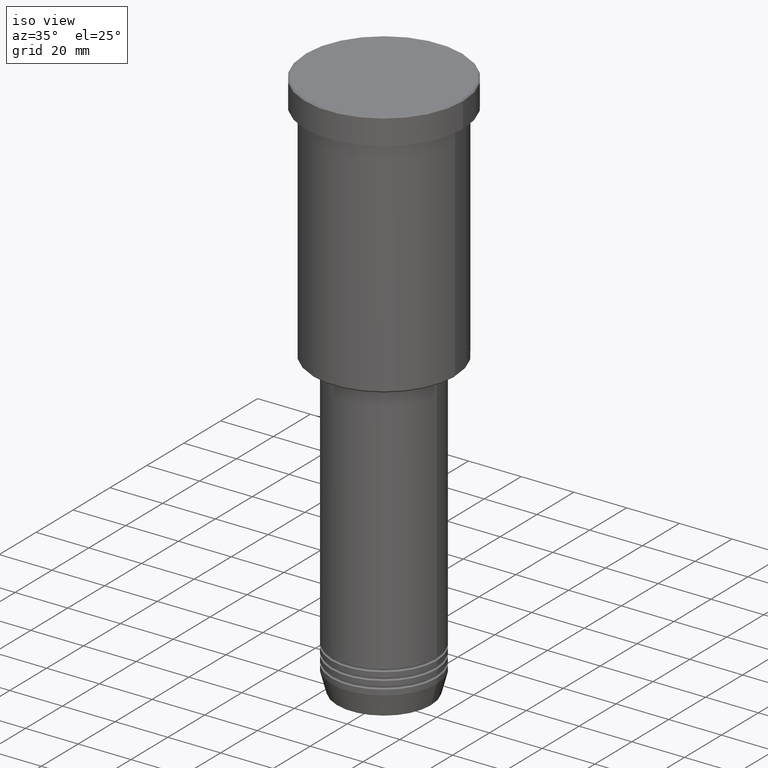
[diagram: clean part render]
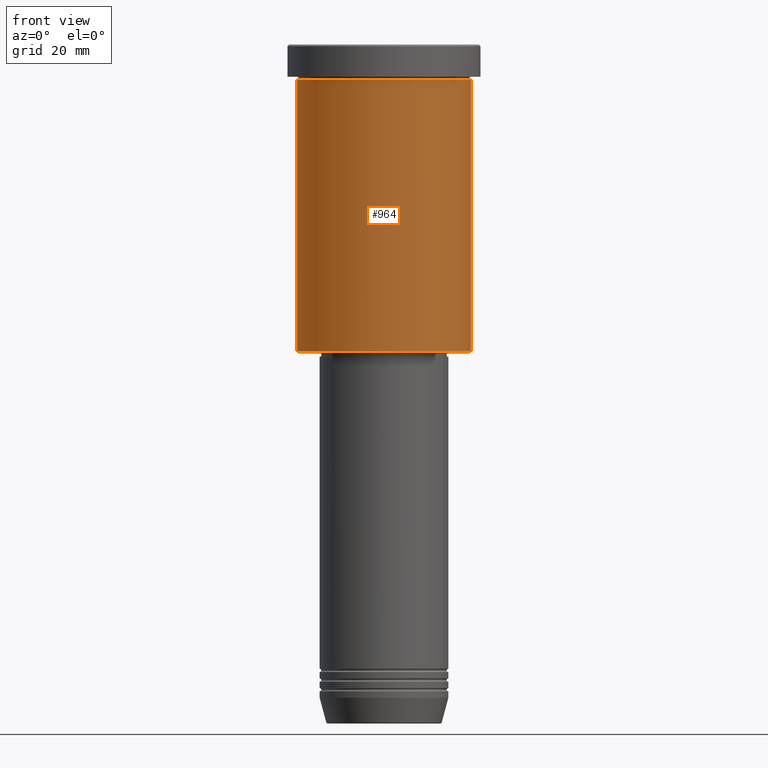
[diagram: tour spotlight — one face highlighted and labeled with its STEP entity id]
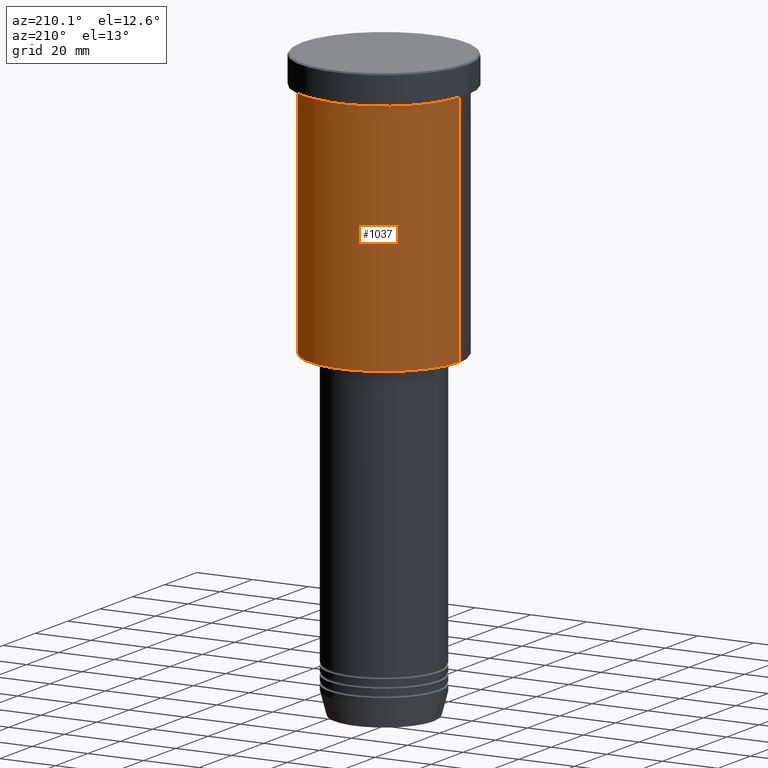
[diagram: tour spotlight — one face highlighted and labeled with its STEP entity id]
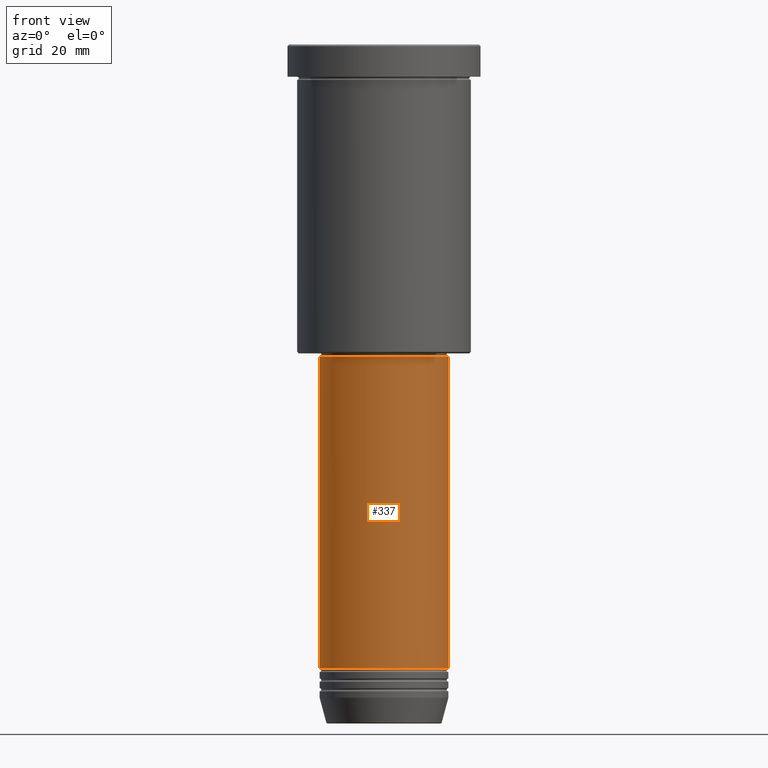
[diagram: tour spotlight — one face highlighted and labeled with its STEP entity id]
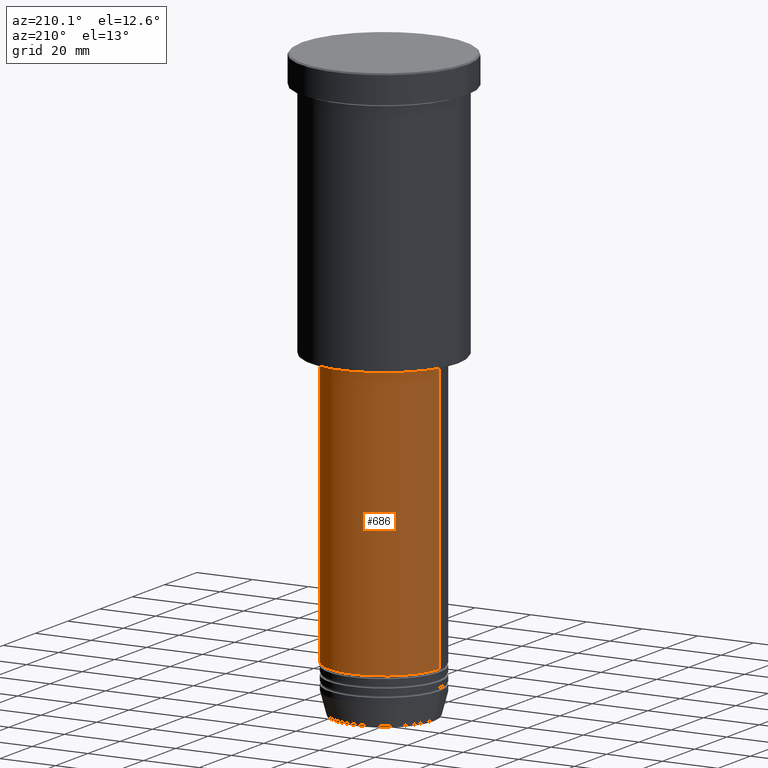
[diagram: tour spotlight — one face highlighted and labeled with its STEP entity id]
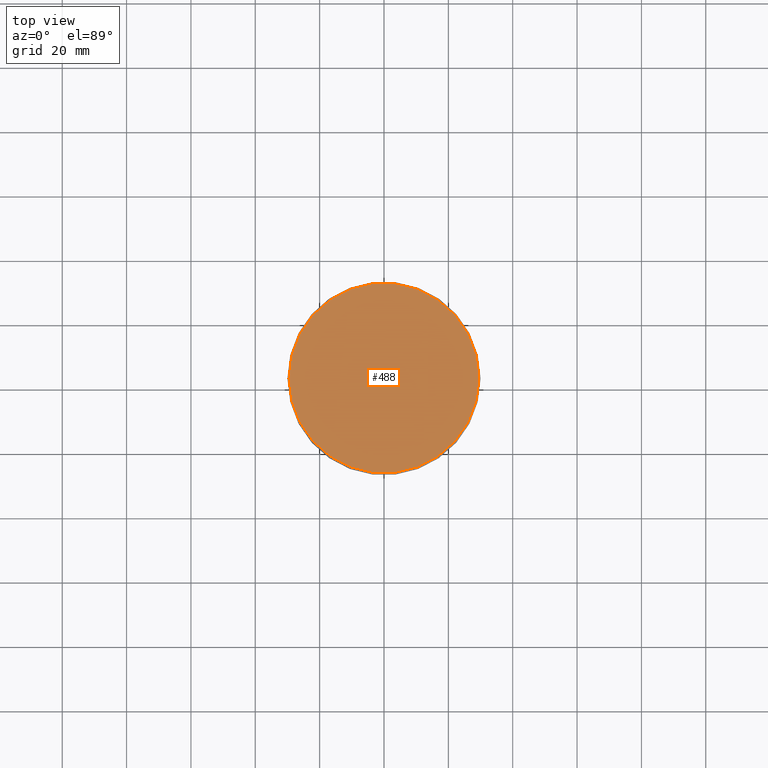
[diagram: tour spotlight — one face highlighted and labeled with its STEP entity id]
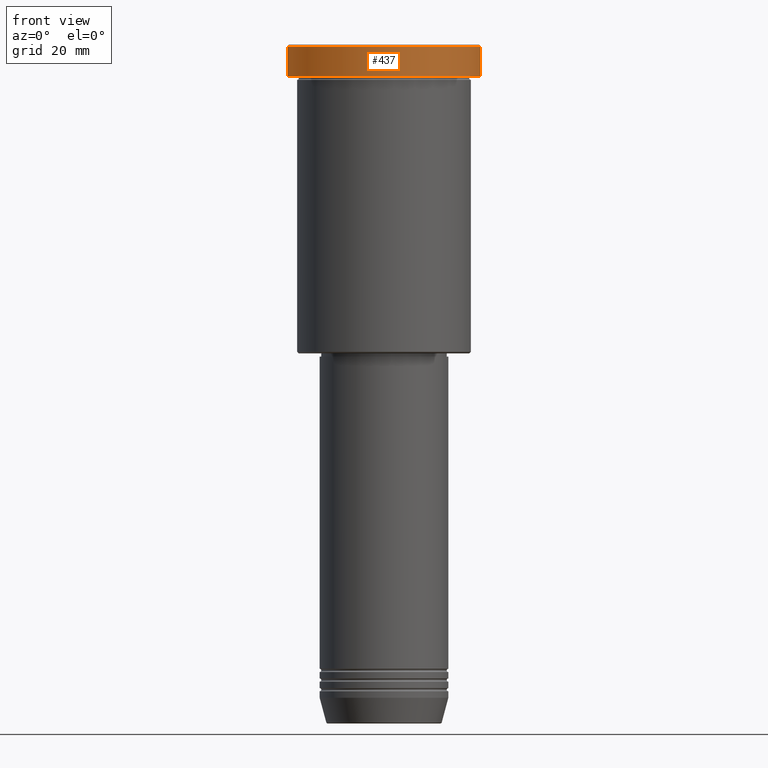
[diagram: tour spotlight — one face highlighted and labeled with its STEP entity id]
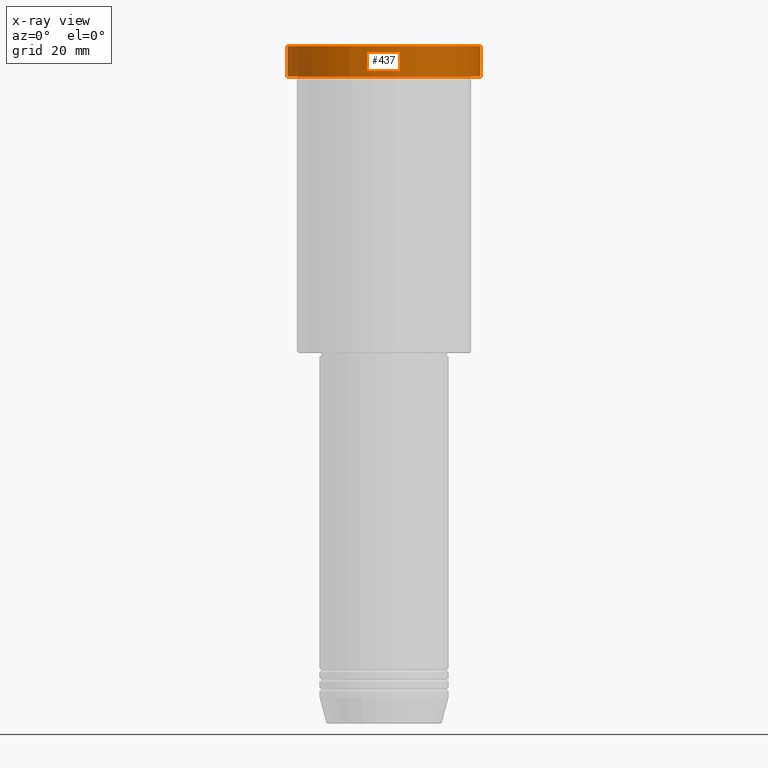
[diagram: x-ray of the same camera — body ghosted, this tour face saturated]
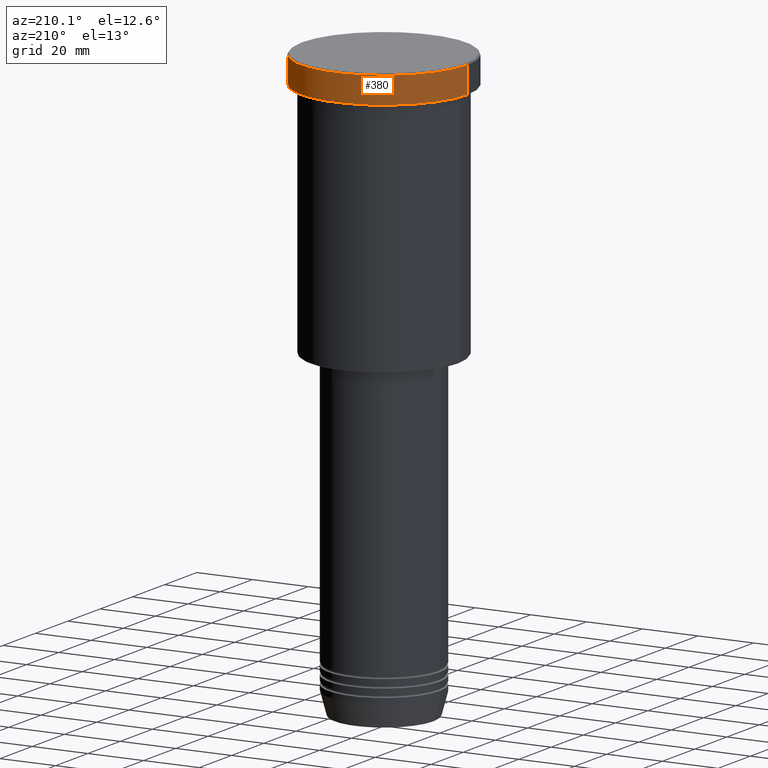
[diagram: tour spotlight — one face highlighted and labeled with its STEP entity id]
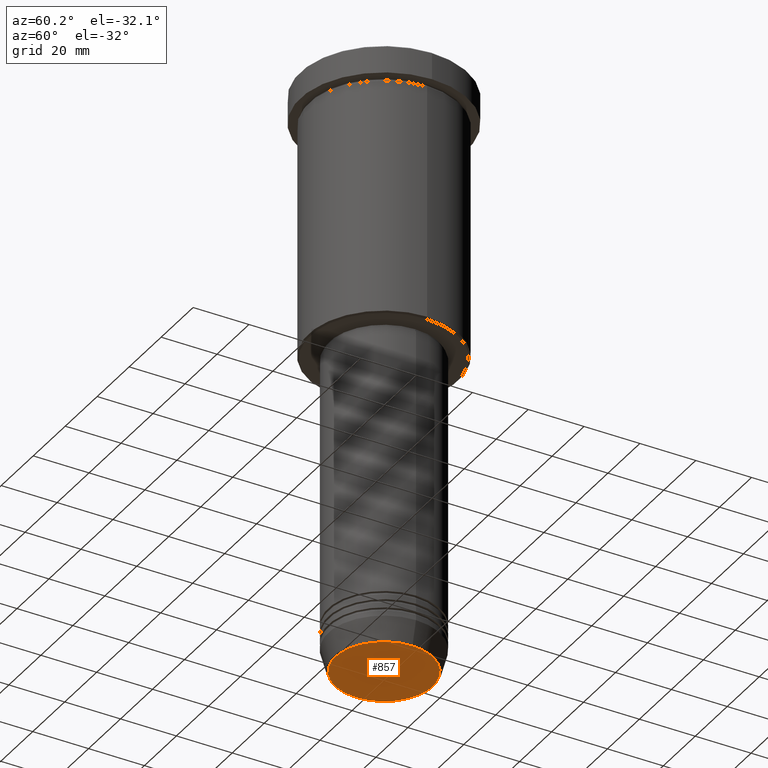
[diagram: tour spotlight — one face highlighted and labeled with its STEP entity id]
A machine part: a face-by-face anatomy tour. The part has 43 B-rep faces; the first image is the clean iso view, then the 8 largest visible faces are spotlighted one at a time (largest first), each with its STEP entity span.

Face 1 — front view, entity #964. In plain terms, the highlighted cylindrical surface (partial cylindrical patch) has radius 27 mm, axis along (-0, -0, 1).
Definition (entity closure, byte-faithful):
#94 = DIRECTION ( 'NONE',  ( -1.000000000000000000, 0.000000000000000000, 0.000000000000000000 ) ) ;
#130 = CARTESIAN_POINT ( 'NONE',  ( 27.00000000000000355, 0.000000000000000000, -10.99999999999999289 ) ) ;
#140 = AXIS2_PLACEMENT_3D ( 'NONE', #374, #643, #743 ) ;
#167 = DIRECTION ( 'NONE',  ( -0.000000000000000000, -0.000000000000000000, 1.000000000000000000 ) ) ;
#177 = ORIENTED_EDGE ( 'NONE', *, *, #750, .F. ) ;
#275 = EDGE_LOOP ( 'NONE', ( #339, #590, #574, #177 ) ) ;
#289 = EDGE_CURVE ( 'NONE', #565, #742, #1074, .T. ) ;
#312 = AXIS2_PLACEMENT_3D ( 'NONE', #621, #167, #94 ) ;
#339 = ORIENTED_EDGE ( 'NONE', *, *, #1002, .F. ) ;
#369 = CARTESIAN_POINT ( 'NONE',  ( 27.00000000000000355, 0.000000000000000000, 0.000000000000000000 ) ) ;
#374 = CARTESIAN_POINT ( 'NONE',  ( 0.000000000000000000, 0.000000000000000000, 0.000000000000000000 ) ) ;
#444 = VECTOR ( 'NONE', #1048, 1000.000000000000000 ) ;
#508 = AXIS2_PLACEMENT_3D ( 'NONE', #889, #1164, #624 ) ;
#565 = VERTEX_POINT ( 'NONE', #610 ) ;
#574 = ORIENTED_EDGE ( 'NONE', *, *, #846, .T. ) ;
#590 = ORIENTED_EDGE ( 'NONE', *, *, #289, .T. ) ;
#610 = CARTESIAN_POINT ( 'NONE',  ( -27.00000000000000355, 3.306546357697854128E-15, -95.49999999999990052 ) ) ;
#621 = CARTESIAN_POINT ( 'NONE',  ( 0.000000000000000000, 0.000000000000000000, -95.49999999999990052 ) ) ;
#624 = DIRECTION ( 'NONE',  ( 1.000000000000000000, 0.000000000000000000, 0.000000000000000000 ) ) ;
#643 = DIRECTION ( 'NONE',  ( -0.000000000000000000, -0.000000000000000000, 1.000000000000000000 ) ) ;
#663 = FACE_OUTER_BOUND ( 'NONE', #275, .T. ) ;
#667 = LINE ( 'NONE', #878, #444 ) ;
#697 = VECTOR ( 'NONE', #1015, 1000.000000000000000 ) ;
#720 = CARTESIAN_POINT ( 'NONE',  ( 27.00000000000000355, 0.000000000000000000, -95.49999999999990052 ) ) ;
#742 = VERTEX_POINT ( 'NONE', #720 ) ;
#743 = DIRECTION ( 'NONE',  ( 1.000000000000000000, 0.000000000000000000, 0.000000000000000000 ) ) ;
#750 = EDGE_CURVE ( 'NONE', #1000, #1087, #1018, .T. ) ;
#846 = EDGE_CURVE ( 'NONE', #742, #1087, #1006, .T. ) ;
#878 = CARTESIAN_POINT ( 'NONE',  ( -27.00000000000000355, 3.306546357697854128E-15, 0.000000000000000000 ) ) ;
#889 = CARTESIAN_POINT ( 'NONE',  ( 0.000000000000000000, 0.000000000000000000, -10.99999999999999289 ) ) ;
#964 = ADVANCED_FACE ( 'NONE', ( #663 ), #1103, .T. ) ;
#1000 = VERTEX_POINT ( 'NONE', #1124 ) ;
#1002 = EDGE_CURVE ( 'NONE', #565, #1000, #667, .T. ) ;
#1006 = LINE ( 'NONE', #369, #697 ) ;
#1015 = DIRECTION ( 'NONE',  ( -0.000000000000000000, -0.000000000000000000, 1.000000000000000000 ) ) ;
#1018 = CIRCLE ( 'NONE', #508, 27.00000000000000355 ) ;
#1048 = DIRECTION ( 'NONE',  ( -0.000000000000000000, -0.000000000000000000, 1.000000000000000000 ) ) ;
#1074 = CIRCLE ( 'NONE', #312, 27.00000000000000355 ) ;
#1087 = VERTEX_POINT ( 'NONE', #130 ) ;
#1103 = CYLINDRICAL_SURFACE ( 'NONE', #140, 27.00000000000000355 ) ;
#1124 = CARTESIAN_POINT ( 'NONE',  ( -27.00000000000000355, 3.306546357697854128E-15, -10.99999999999999289 ) ) ;
#1164 = DIRECTION ( 'NONE',  ( -0.000000000000000000, -0.000000000000000000, 1.000000000000000000 ) ) ;

Face 2 — auxiliary view, entity #1037. In plain terms, the highlighted cylindrical surface (partial cylindrical patch) has radius 27 mm, axis along (-0, -0, 1).
Definition (entity closure, byte-faithful):
#3 = ORIENTED_EDGE ( 'NONE', *, *, #846, .F. ) ;
#82 = CARTESIAN_POINT ( 'NONE',  ( 0.000000000000000000, 0.000000000000000000, -95.49999999999990052 ) ) ;
#89 = CIRCLE ( 'NONE', #999, 27.00000000000000355 ) ;
#130 = CARTESIAN_POINT ( 'NONE',  ( 27.00000000000000355, 0.000000000000000000, -10.99999999999999289 ) ) ;
#188 = EDGE_LOOP ( 'NONE', ( #618, #627, #548, #3 ) ) ;
#316 = CARTESIAN_POINT ( 'NONE',  ( 0.000000000000000000, 0.000000000000000000, -10.99999999999999289 ) ) ;
#369 = CARTESIAN_POINT ( 'NONE',  ( 27.00000000000000355, 0.000000000000000000, 0.000000000000000000 ) ) ;
#401 = DIRECTION ( 'NONE',  ( 1.000000000000000000, 0.000000000000000000, 0.000000000000000000 ) ) ;
#444 = VECTOR ( 'NONE', #1048, 1000.000000000000000 ) ;
#492 = DIRECTION ( 'NONE',  ( 1.000000000000000000, 0.000000000000000000, 0.000000000000000000 ) ) ;
#534 = DIRECTION ( 'NONE',  ( -0.000000000000000000, -0.000000000000000000, 1.000000000000000000 ) ) ;
#542 = EDGE_CURVE ( 'NONE', #1087, #1000, #89, .T. ) ;
#548 = ORIENTED_EDGE ( 'NONE', *, *, #542, .F. ) ;
#565 = VERTEX_POINT ( 'NONE', #610 ) ;
#575 = DIRECTION ( 'NONE',  ( -0.000000000000000000, -0.000000000000000000, 1.000000000000000000 ) ) ;
#598 = DIRECTION ( 'NONE',  ( -0.000000000000000000, -0.000000000000000000, 1.000000000000000000 ) ) ;
#610 = CARTESIAN_POINT ( 'NONE',  ( -27.00000000000000355, 3.306546357697854128E-15, -95.49999999999990052 ) ) ;
#618 = ORIENTED_EDGE ( 'NONE', *, *, #680, .T. ) ;
#627 = ORIENTED_EDGE ( 'NONE', *, *, #1002, .T. ) ;
#667 = LINE ( 'NONE', #878, #444 ) ;
#680 = EDGE_CURVE ( 'NONE', #742, #565, #1155, .T. ) ;
#695 = AXIS2_PLACEMENT_3D ( 'NONE', #82, #534, #1157 ) ;
#697 = VECTOR ( 'NONE', #1015, 1000.000000000000000 ) ;
#720 = CARTESIAN_POINT ( 'NONE',  ( 27.00000000000000355, 0.000000000000000000, -95.49999999999990052 ) ) ;
#742 = VERTEX_POINT ( 'NONE', #720 ) ;
#778 = CARTESIAN_POINT ( 'NONE',  ( 0.000000000000000000, 0.000000000000000000, 0.000000000000000000 ) ) ;
#846 = EDGE_CURVE ( 'NONE', #742, #1087, #1006, .T. ) ;
#878 = CARTESIAN_POINT ( 'NONE',  ( -27.00000000000000355, 3.306546357697854128E-15, 0.000000000000000000 ) ) ;
#999 = AXIS2_PLACEMENT_3D ( 'NONE', #316, #598, #401 ) ;
#1000 = VERTEX_POINT ( 'NONE', #1124 ) ;
#1002 = EDGE_CURVE ( 'NONE', #565, #1000, #667, .T. ) ;
#1006 = LINE ( 'NONE', #369, #697 ) ;
#1015 = DIRECTION ( 'NONE',  ( -0.000000000000000000, -0.000000000000000000, 1.000000000000000000 ) ) ;
#1035 = FACE_OUTER_BOUND ( 'NONE', #188, .T. ) ;
#1037 = ADVANCED_FACE ( 'NONE', ( #1035 ), #1130, .T. ) ;
#1048 = DIRECTION ( 'NONE',  ( -0.000000000000000000, -0.000000000000000000, 1.000000000000000000 ) ) ;
#1087 = VERTEX_POINT ( 'NONE', #130 ) ;
#1124 = CARTESIAN_POINT ( 'NONE',  ( -27.00000000000000355, 3.306546357697854128E-15, -10.99999999999999289 ) ) ;
#1130 = CYLINDRICAL_SURFACE ( 'NONE', #1169, 27.00000000000000355 ) ;
#1155 = CIRCLE ( 'NONE', #695, 27.00000000000000355 ) ;
#1157 = DIRECTION ( 'NONE',  ( -1.000000000000000000, 0.000000000000000000, 0.000000000000000000 ) ) ;
#1169 = AXIS2_PLACEMENT_3D ( 'NONE', #778, #575, #492 ) ;

Face 3 — front view, entity #337. In plain terms, the highlighted cylindrical surface (partial cylindrical patch) has radius 20 mm, axis along (-0, -0, 1).
Definition (entity closure, byte-faithful):
#4 = ORIENTED_EDGE ( 'NONE', *, *, #414, .T. ) ;
#92 = VERTEX_POINT ( 'NONE', #241 ) ;
#114 = CYLINDRICAL_SURFACE ( 'NONE', #465, 20.00000000000000000 ) ;
#116 = EDGE_CURVE ( 'NONE', #281, #651, #656, .T. ) ;
#144 = DIRECTION ( 'NONE',  ( -0.000000000000000000, -0.000000000000000000, 1.000000000000000000 ) ) ;
#153 = ORIENTED_EDGE ( 'NONE', *, *, #116, .F. ) ;
#196 = DIRECTION ( 'NONE',  ( -0.000000000000000000, -0.000000000000000000, 1.000000000000000000 ) ) ;
#241 = CARTESIAN_POINT ( 'NONE',  ( -20.00000000000000000, 2.449293598294706513E-15, -193.9999999999999716 ) ) ;
#281 = VERTEX_POINT ( 'NONE', #341 ) ;
#314 = LINE ( 'NONE', #591, #868 ) ;
#317 = DIRECTION ( 'NONE',  ( -0.000000000000000000, -0.000000000000000000, 1.000000000000000000 ) ) ;
#337 = ADVANCED_FACE ( 'NONE', ( #847 ), #114, .T. ) ;
#341 = CARTESIAN_POINT ( 'NONE',  ( -20.00000000000000000, 2.449293598294706513E-15, -97.00000000000000000 ) ) ;
#368 = ORIENTED_EDGE ( 'NONE', *, *, #1020, .T. ) ;
#376 = CARTESIAN_POINT ( 'NONE',  ( 20.00000000000000000, 0.000000000000000000, 0.000000000000000000 ) ) ;
#381 = CARTESIAN_POINT ( 'NONE',  ( 0.000000000000000000, 0.000000000000000000, 0.000000000000000000 ) ) ;
#414 = EDGE_CURVE ( 'NONE', #729, #651, #668, .T. ) ;
#465 = AXIS2_PLACEMENT_3D ( 'NONE', #381, #196, #1114 ) ;
#486 = CARTESIAN_POINT ( 'NONE',  ( 0.000000000000000000, 0.000000000000000000, -193.9999999999999716 ) ) ;
#501 = CIRCLE ( 'NONE', #919, 20.00000000000000000 ) ;
#591 = CARTESIAN_POINT ( 'NONE',  ( -20.00000000000000000, 2.449293598294706513E-15, 0.000000000000000000 ) ) ;
#622 = ORIENTED_EDGE ( 'NONE', *, *, #1067, .F. ) ;
#649 = DIRECTION ( 'NONE',  ( -0.000000000000000000, -0.000000000000000000, 1.000000000000000000 ) ) ;
#651 = VERTEX_POINT ( 'NONE', #907 ) ;
#656 = CIRCLE ( 'NONE', #996, 20.00000000000000000 ) ;
#668 = LINE ( 'NONE', #376, #1174 ) ;
#729 = VERTEX_POINT ( 'NONE', #1082 ) ;
#782 = DIRECTION ( 'NONE',  ( 1.000000000000000000, 0.000000000000000000, 0.000000000000000000 ) ) ;
#847 = FACE_OUTER_BOUND ( 'NONE', #984, .T. ) ;
#868 = VECTOR ( 'NONE', #938, 1000.000000000000000 ) ;
#907 = CARTESIAN_POINT ( 'NONE',  ( 20.00000000000000000, 0.000000000000000000, -97.00000000000000000 ) ) ;
#919 = AXIS2_PLACEMENT_3D ( 'NONE', #486, #144, #782 ) ;
#938 = DIRECTION ( 'NONE',  ( -0.000000000000000000, -0.000000000000000000, 1.000000000000000000 ) ) ;
#984 = EDGE_LOOP ( 'NONE', ( #622, #368, #4, #153 ) ) ;
#996 = AXIS2_PLACEMENT_3D ( 'NONE', #1133, #317, #1154 ) ;
#1020 = EDGE_CURVE ( 'NONE', #92, #729, #501, .T. ) ;
#1067 = EDGE_CURVE ( 'NONE', #92, #281, #314, .T. ) ;
#1082 = CARTESIAN_POINT ( 'NONE',  ( 20.00000000000000000, 0.000000000000000000, -193.9999999999999716 ) ) ;
#1114 = DIRECTION ( 'NONE',  ( 1.000000000000000000, 0.000000000000000000, 0.000000000000000000 ) ) ;
#1133 = CARTESIAN_POINT ( 'NONE',  ( 0.000000000000000000, 0.000000000000000000, -97.00000000000000000 ) ) ;
#1154 = DIRECTION ( 'NONE',  ( 1.000000000000000000, 0.000000000000000000, 0.000000000000000000 ) ) ;
#1174 = VECTOR ( 'NONE', #649, 1000.000000000000000 ) ;

Face 4 — auxiliary view, entity #686. In plain terms, the highlighted cylindrical surface (partial cylindrical patch) has radius 20 mm, axis along (-0, -0, 1).
Definition (entity closure, byte-faithful):
#86 = CIRCLE ( 'NONE', #811, 20.00000000000000000 ) ;
#92 = VERTEX_POINT ( 'NONE', #241 ) ;
#93 = FACE_OUTER_BOUND ( 'NONE', #1102, .T. ) ;
#160 = CIRCLE ( 'NONE', #483, 20.00000000000000000 ) ;
#176 = EDGE_CURVE ( 'NONE', #651, #281, #86, .T. ) ;
#203 = DIRECTION ( 'NONE',  ( -0.000000000000000000, -0.000000000000000000, 1.000000000000000000 ) ) ;
#235 = CARTESIAN_POINT ( 'NONE',  ( 0.000000000000000000, 0.000000000000000000, -97.00000000000000000 ) ) ;
#241 = CARTESIAN_POINT ( 'NONE',  ( -20.00000000000000000, 2.449293598294706513E-15, -193.9999999999999716 ) ) ;
#281 = VERTEX_POINT ( 'NONE', #341 ) ;
#314 = LINE ( 'NONE', #591, #868 ) ;
#341 = CARTESIAN_POINT ( 'NONE',  ( -20.00000000000000000, 2.449293598294706513E-15, -97.00000000000000000 ) ) ;
#359 = EDGE_CURVE ( 'NONE', #729, #92, #160, .T. ) ;
#376 = CARTESIAN_POINT ( 'NONE',  ( 20.00000000000000000, 0.000000000000000000, 0.000000000000000000 ) ) ;
#414 = EDGE_CURVE ( 'NONE', #729, #651, #668, .T. ) ;
#452 = CARTESIAN_POINT ( 'NONE',  ( 0.000000000000000000, 0.000000000000000000, 0.000000000000000000 ) ) ;
#457 = ORIENTED_EDGE ( 'NONE', *, *, #414, .F. ) ;
#461 = ORIENTED_EDGE ( 'NONE', *, *, #1067, .T. ) ;
#483 = AXIS2_PLACEMENT_3D ( 'NONE', #836, #203, #1100 ) ;
#522 = CYLINDRICAL_SURFACE ( 'NONE', #620, 20.00000000000000000 ) ;
#591 = CARTESIAN_POINT ( 'NONE',  ( -20.00000000000000000, 2.449293598294706513E-15, 0.000000000000000000 ) ) ;
#600 = DIRECTION ( 'NONE',  ( -0.000000000000000000, -0.000000000000000000, 1.000000000000000000 ) ) ;
#620 = AXIS2_PLACEMENT_3D ( 'NONE', #452, #974, #812 ) ;
#649 = DIRECTION ( 'NONE',  ( -0.000000000000000000, -0.000000000000000000, 1.000000000000000000 ) ) ;
#651 = VERTEX_POINT ( 'NONE', #907 ) ;
#668 = LINE ( 'NONE', #376, #1174 ) ;
#686 = ADVANCED_FACE ( 'NONE', ( #93 ), #522, .T. ) ;
#729 = VERTEX_POINT ( 'NONE', #1082 ) ;
#811 = AXIS2_PLACEMENT_3D ( 'NONE', #235, #600, #1083 ) ;
#812 = DIRECTION ( 'NONE',  ( 1.000000000000000000, 0.000000000000000000, 0.000000000000000000 ) ) ;
#836 = CARTESIAN_POINT ( 'NONE',  ( 0.000000000000000000, 0.000000000000000000, -193.9999999999999716 ) ) ;
#868 = VECTOR ( 'NONE', #938, 1000.000000000000000 ) ;
#907 = CARTESIAN_POINT ( 'NONE',  ( 20.00000000000000000, 0.000000000000000000, -97.00000000000000000 ) ) ;
#938 = DIRECTION ( 'NONE',  ( -0.000000000000000000, -0.000000000000000000, 1.000000000000000000 ) ) ;
#974 = DIRECTION ( 'NONE',  ( -0.000000000000000000, -0.000000000000000000, 1.000000000000000000 ) ) ;
#1004 = ORIENTED_EDGE ( 'NONE', *, *, #176, .F. ) ;
#1067 = EDGE_CURVE ( 'NONE', #92, #281, #314, .T. ) ;
#1082 = CARTESIAN_POINT ( 'NONE',  ( 20.00000000000000000, 0.000000000000000000, -193.9999999999999716 ) ) ;
#1083 = DIRECTION ( 'NONE',  ( 1.000000000000000000, 0.000000000000000000, 0.000000000000000000 ) ) ;
#1100 = DIRECTION ( 'NONE',  ( 1.000000000000000000, 0.000000000000000000, 0.000000000000000000 ) ) ;
#1102 = EDGE_LOOP ( 'NONE', ( #1109, #461, #1004, #457 ) ) ;
#1109 = ORIENTED_EDGE ( 'NONE', *, *, #359, .T. ) ;
#1174 = VECTOR ( 'NONE', #649, 1000.000000000000000 ) ;

Face 5 — top view, entity #488. In plain terms, the highlighted planar face has unit normal (0, -0, 1).
Definition (entity closure, byte-faithful):
#35 = EDGE_CURVE ( 'NONE', #405, #546, #423, .T. ) ;
#121 = EDGE_LOOP ( 'NONE', ( #1065, #990 ) ) ;
#126 = DIRECTION ( 'NONE',  ( -0.000000000000000000, -0.000000000000000000, 1.000000000000000000 ) ) ;
#162 = AXIS2_PLACEMENT_3D ( 'NONE', #1143, #126, #1053 ) ;
#245 = CARTESIAN_POINT ( 'NONE',  ( -29.50000000000005329, 0.000000000000000000, 0.000000000000000000 ) ) ;
#322 = DIRECTION ( 'NONE',  ( 0.000000000000000000, -0.000000000000000000, 1.000000000000000000 ) ) ;
#405 = VERTEX_POINT ( 'NONE', #924 ) ;
#423 = CIRCLE ( 'NONE', #1148, 29.50000000000005329 ) ;
#487 = DIRECTION ( 'NONE',  ( 1.000000000000000000, 0.000000000000000000, 0.000000000000000000 ) ) ;
#488 = ADVANCED_FACE ( 'NONE', ( #587 ), #965, .T. ) ;
#546 = VERTEX_POINT ( 'NONE', #245 ) ;
#555 = DIRECTION ( 'NONE',  ( -0.000000000000000000, -0.000000000000000000, 1.000000000000000000 ) ) ;
#562 = DIRECTION ( 'NONE',  ( 1.000000000000000000, 0.000000000000000000, 0.000000000000000000 ) ) ;
#576 = EDGE_CURVE ( 'NONE', #546, #405, #960, .T. ) ;
#580 = CARTESIAN_POINT ( 'NONE',  ( 0.000000000000000000, 0.000000000000000000, 0.000000000000000000 ) ) ;
#587 = FACE_OUTER_BOUND ( 'NONE', #121, .T. ) ;
#850 = AXIS2_PLACEMENT_3D ( 'NONE', #951, #322, #487 ) ;
#924 = CARTESIAN_POINT ( 'NONE',  ( 29.50000000000005329, 3.643324227463378546E-15, 0.000000000000000000 ) ) ;
#951 = CARTESIAN_POINT ( 'NONE',  ( 0.000000000000000000, 0.000000000000000000, 0.000000000000000000 ) ) ;
#960 = CIRCLE ( 'NONE', #162, 29.50000000000005329 ) ;
#965 = PLANE ( 'NONE',  #850 ) ;
#990 = ORIENTED_EDGE ( 'NONE', *, *, #35, .T. ) ;
#1053 = DIRECTION ( 'NONE',  ( 1.000000000000000000, 0.000000000000000000, 0.000000000000000000 ) ) ;
#1065 = ORIENTED_EDGE ( 'NONE', *, *, #576, .T. ) ;
#1143 = CARTESIAN_POINT ( 'NONE',  ( 0.000000000000000000, 0.000000000000000000, 0.000000000000000000 ) ) ;
#1148 = AXIS2_PLACEMENT_3D ( 'NONE', #580, #555, #562 ) ;

Face 6 — front view, entity #437. An x-ray twin of the same camera follows (body ghosted, this face saturated) — the face is partly hidden behind the body. In plain terms, the highlighted cylindrical surface (partial cylindrical patch) has radius 30 mm, axis along (-0, -0, 1).
Definition (entity closure, byte-faithful):
#24 = FACE_OUTER_BOUND ( 'NONE', #1159, .T. ) ;
#97 = DIRECTION ( 'NONE',  ( -0.000000000000000000, -0.000000000000000000, 1.000000000000000000 ) ) ;
#111 = ORIENTED_EDGE ( 'NONE', *, *, #810, .T. ) ;
#112 = ORIENTED_EDGE ( 'NONE', *, *, #863, .T. ) ;
#118 = CARTESIAN_POINT ( 'NONE',  ( 30.00000000000000000, 0.000000000000000000, 0.000000000000000000 ) ) ;
#149 = DIRECTION ( 'NONE',  ( 0.000000000000000000, 0.000000000000000000, -1.000000000000000000 ) ) ;
#186 = CARTESIAN_POINT ( 'NONE',  ( 0.000000000000000000, 0.000000000000000000, -9.999999999999992895 ) ) ;
#201 = ORIENTED_EDGE ( 'NONE', *, *, #601, .T. ) ;
#211 = CARTESIAN_POINT ( 'NONE',  ( -30.00000000000000000, 3.673940397442059178E-15, -9.999999999999992895 ) ) ;
#286 = CARTESIAN_POINT ( 'NONE',  ( 30.00000000000000000, 0.000000000000000000, -0.4999999999999518718 ) ) ;
#297 = CARTESIAN_POINT ( 'NONE',  ( 0.000000000000000000, 0.000000000000000000, 0.000000000000000000 ) ) ;
#330 = AXIS2_PLACEMENT_3D ( 'NONE', #776, #149, #855 ) ;
#336 = VERTEX_POINT ( 'NONE', #286 ) ;
#365 = DIRECTION ( 'NONE',  ( 1.000000000000000000, 0.000000000000000000, 0.000000000000000000 ) ) ;
#393 = VERTEX_POINT ( 'NONE', #559 ) ;
#428 = VERTEX_POINT ( 'NONE', #842 ) ;
#430 = CIRCLE ( 'NONE', #330, 30.00000000000000000 ) ;
#437 = ADVANCED_FACE ( 'NONE', ( #24 ), #935, .T. ) ;
#459 = DIRECTION ( 'NONE',  ( -0.000000000000000000, -0.000000000000000000, 1.000000000000000000 ) ) ;
#479 = DIRECTION ( 'NONE',  ( -0.000000000000000000, -0.000000000000000000, 1.000000000000000000 ) ) ;
#552 = DIRECTION ( 'NONE',  ( -0.000000000000000000, -0.000000000000000000, 1.000000000000000000 ) ) ;
#559 = CARTESIAN_POINT ( 'NONE',  ( 30.00000000000000000, 0.000000000000000000, -9.999999999999992895 ) ) ;
#601 = EDGE_CURVE ( 'NONE', #336, #428, #430, .T. ) ;
#647 = LINE ( 'NONE', #118, #962 ) ;
#734 = AXIS2_PLACEMENT_3D ( 'NONE', #297, #459, #365 ) ;
#757 = LINE ( 'NONE', #1110, #772 ) ;
#772 = VECTOR ( 'NONE', #479, 1000.000000000000000 ) ;
#776 = CARTESIAN_POINT ( 'NONE',  ( 0.000000000000000000, 0.000000000000000000, -0.4999999999999518718 ) ) ;
#810 = EDGE_CURVE ( 'NONE', #1033, #393, #888, .T. ) ;
#816 = EDGE_CURVE ( 'NONE', #1033, #428, #757, .T. ) ;
#842 = CARTESIAN_POINT ( 'NONE',  ( -30.00000000000000000, 3.673940397442059178E-15, -0.4999999999999518718 ) ) ;
#852 = AXIS2_PLACEMENT_3D ( 'NONE', #186, #552, #928 ) ;
#855 = DIRECTION ( 'NONE',  ( 1.000000000000000000, 0.000000000000000000, 0.000000000000000000 ) ) ;
#863 = EDGE_CURVE ( 'NONE', #393, #336, #647, .T. ) ;
#888 = CIRCLE ( 'NONE', #852, 30.00000000000000000 ) ;
#928 = DIRECTION ( 'NONE',  ( 1.000000000000000000, 0.000000000000000000, 0.000000000000000000 ) ) ;
#935 = CYLINDRICAL_SURFACE ( 'NONE', #734, 30.00000000000000000 ) ;
#962 = VECTOR ( 'NONE', #97, 1000.000000000000000 ) ;
#1033 = VERTEX_POINT ( 'NONE', #211 ) ;
#1110 = CARTESIAN_POINT ( 'NONE',  ( -30.00000000000000000, 3.673940397442059178E-15, 0.000000000000000000 ) ) ;
#1116 = ORIENTED_EDGE ( 'NONE', *, *, #816, .F. ) ;
#1159 = EDGE_LOOP ( 'NONE', ( #1116, #111, #112, #201 ) ) ;

Face 7 — auxiliary view, entity #380. In plain terms, the highlighted cylindrical surface (partial cylindrical patch) has radius 30 mm, axis along (-0, -0, 1).
Definition (entity closure, byte-faithful):
#21 = DIRECTION ( 'NONE',  ( -0.000000000000000000, -0.000000000000000000, 1.000000000000000000 ) ) ;
#46 = EDGE_CURVE ( 'NONE', #393, #1033, #573, .T. ) ;
#97 = DIRECTION ( 'NONE',  ( -0.000000000000000000, -0.000000000000000000, 1.000000000000000000 ) ) ;
#118 = CARTESIAN_POINT ( 'NONE',  ( 30.00000000000000000, 0.000000000000000000, 0.000000000000000000 ) ) ;
#125 = AXIS2_PLACEMENT_3D ( 'NONE', #345, #356, #970 ) ;
#211 = CARTESIAN_POINT ( 'NONE',  ( -30.00000000000000000, 3.673940397442059178E-15, -9.999999999999992895 ) ) ;
#212 = CYLINDRICAL_SURFACE ( 'NONE', #1017, 30.00000000000000000 ) ;
#286 = CARTESIAN_POINT ( 'NONE',  ( 30.00000000000000000, 0.000000000000000000, -0.4999999999999518718 ) ) ;
#302 = DIRECTION ( 'NONE',  ( 1.000000000000000000, 0.000000000000000000, 0.000000000000000000 ) ) ;
#336 = VERTEX_POINT ( 'NONE', #286 ) ;
#345 = CARTESIAN_POINT ( 'NONE',  ( 0.000000000000000000, 0.000000000000000000, -0.4999999999999518718 ) ) ;
#356 = DIRECTION ( 'NONE',  ( 0.000000000000000000, 0.000000000000000000, -1.000000000000000000 ) ) ;
#380 = ADVANCED_FACE ( 'NONE', ( #463 ), #212, .T. ) ;
#390 = CARTESIAN_POINT ( 'NONE',  ( 0.000000000000000000, 0.000000000000000000, 0.000000000000000000 ) ) ;
#393 = VERTEX_POINT ( 'NONE', #559 ) ;
#428 = VERTEX_POINT ( 'NONE', #842 ) ;
#463 = FACE_OUTER_BOUND ( 'NONE', #991, .T. ) ;
#479 = DIRECTION ( 'NONE',  ( -0.000000000000000000, -0.000000000000000000, 1.000000000000000000 ) ) ;
#559 = CARTESIAN_POINT ( 'NONE',  ( 30.00000000000000000, 0.000000000000000000, -9.999999999999992895 ) ) ;
#569 = ORIENTED_EDGE ( 'NONE', *, *, #816, .T. ) ;
#573 = CIRCLE ( 'NONE', #728, 30.00000000000000000 ) ;
#577 = DIRECTION ( 'NONE',  ( -0.000000000000000000, -0.000000000000000000, 1.000000000000000000 ) ) ;
#638 = CIRCLE ( 'NONE', #125, 30.00000000000000000 ) ;
#646 = ORIENTED_EDGE ( 'NONE', *, *, #46, .T. ) ;
#647 = LINE ( 'NONE', #118, #962 ) ;
#665 = DIRECTION ( 'NONE',  ( 1.000000000000000000, 0.000000000000000000, 0.000000000000000000 ) ) ;
#700 = EDGE_CURVE ( 'NONE', #428, #336, #638, .T. ) ;
#728 = AXIS2_PLACEMENT_3D ( 'NONE', #925, #21, #665 ) ;
#757 = LINE ( 'NONE', #1110, #772 ) ;
#772 = VECTOR ( 'NONE', #479, 1000.000000000000000 ) ;
#792 = ORIENTED_EDGE ( 'NONE', *, *, #700, .T. ) ;
#816 = EDGE_CURVE ( 'NONE', #1033, #428, #757, .T. ) ;
#842 = CARTESIAN_POINT ( 'NONE',  ( -30.00000000000000000, 3.673940397442059178E-15, -0.4999999999999518718 ) ) ;
#863 = EDGE_CURVE ( 'NONE', #393, #336, #647, .T. ) ;
#899 = ORIENTED_EDGE ( 'NONE', *, *, #863, .F. ) ;
#925 = CARTESIAN_POINT ( 'NONE',  ( 0.000000000000000000, 0.000000000000000000, -9.999999999999992895 ) ) ;
#962 = VECTOR ( 'NONE', #97, 1000.000000000000000 ) ;
#970 = DIRECTION ( 'NONE',  ( 1.000000000000000000, 0.000000000000000000, 0.000000000000000000 ) ) ;
#991 = EDGE_LOOP ( 'NONE', ( #646, #569, #792, #899 ) ) ;
#1017 = AXIS2_PLACEMENT_3D ( 'NONE', #390, #577, #302 ) ;
#1033 = VERTEX_POINT ( 'NONE', #211 ) ;
#1110 = CARTESIAN_POINT ( 'NONE',  ( -30.00000000000000000, 3.673940397442059178E-15, 0.000000000000000000 ) ) ;

Face 8 — auxiliary view, entity #857. In plain terms, the highlighted planar face has unit normal (0, -0, 1).
Definition (entity closure, byte-faithful):
#48 = CIRCLE ( 'NONE', #253, 17.47274296656153325 ) ;
#81 = VERTEX_POINT ( 'NONE', #1060 ) ;
#83 = EDGE_CURVE ( 'NONE', #81, #761, #827, .T. ) ;
#85 = AXIS2_PLACEMENT_3D ( 'NONE', #308, #1041, #224 ) ;
#165 = EDGE_LOOP ( 'NONE', ( #485, #987 ) ) ;
#178 = CARTESIAN_POINT ( 'NONE',  ( -17.47274296656153325, 2.169366823916867714E-15, -211.0000000000000284 ) ) ;
#206 = PLANE ( 'NONE',  #640 ) ;
#224 = DIRECTION ( 'NONE',  ( 1.000000000000000000, 0.000000000000000000, 0.000000000000000000 ) ) ;
#253 = AXIS2_PLACEMENT_3D ( 'NONE', #604, #874, #513 ) ;
#308 = CARTESIAN_POINT ( 'NONE',  ( 0.000000000000000000, 0.000000000000000000, -211.0000000000000284 ) ) ;
#485 = ORIENTED_EDGE ( 'NONE', *, *, #83, .T. ) ;
#513 = DIRECTION ( 'NONE',  ( 1.000000000000000000, 0.000000000000000000, 0.000000000000000000 ) ) ;
#604 = CARTESIAN_POINT ( 'NONE',  ( 0.000000000000000000, 0.000000000000000000, -211.0000000000000284 ) ) ;
#640 = AXIS2_PLACEMENT_3D ( 'NONE', #835, #733, #1099 ) ;
#733 = DIRECTION ( 'NONE',  ( 0.000000000000000000, -0.000000000000000000, 1.000000000000000000 ) ) ;
#739 = FACE_OUTER_BOUND ( 'NONE', #165, .T. ) ;
#761 = VERTEX_POINT ( 'NONE', #178 ) ;
#827 = CIRCLE ( 'NONE', #85, 17.47274296656153325 ) ;
#835 = CARTESIAN_POINT ( 'NONE',  ( 0.000000000000000000, 0.000000000000000000, -211.0000000000000284 ) ) ;
#857 = ADVANCED_FACE ( 'NONE', ( #739 ), #206, .F. ) ;
#874 = DIRECTION ( 'NONE',  ( 0.000000000000000000, 0.000000000000000000, -1.000000000000000000 ) ) ;
#982 = EDGE_CURVE ( 'NONE', #761, #81, #48, .T. ) ;
#987 = ORIENTED_EDGE ( 'NONE', *, *, #982, .T. ) ;
#1041 = DIRECTION ( 'NONE',  ( 0.000000000000000000, 0.000000000000000000, -1.000000000000000000 ) ) ;
#1060 = CARTESIAN_POINT ( 'NONE',  ( 17.47274296656153325, 0.000000000000000000, -211.0000000000000284 ) ) ;
#1099 = DIRECTION ( 'NONE',  ( 1.000000000000000000, 0.000000000000000000, 0.000000000000000000 ) ) ;